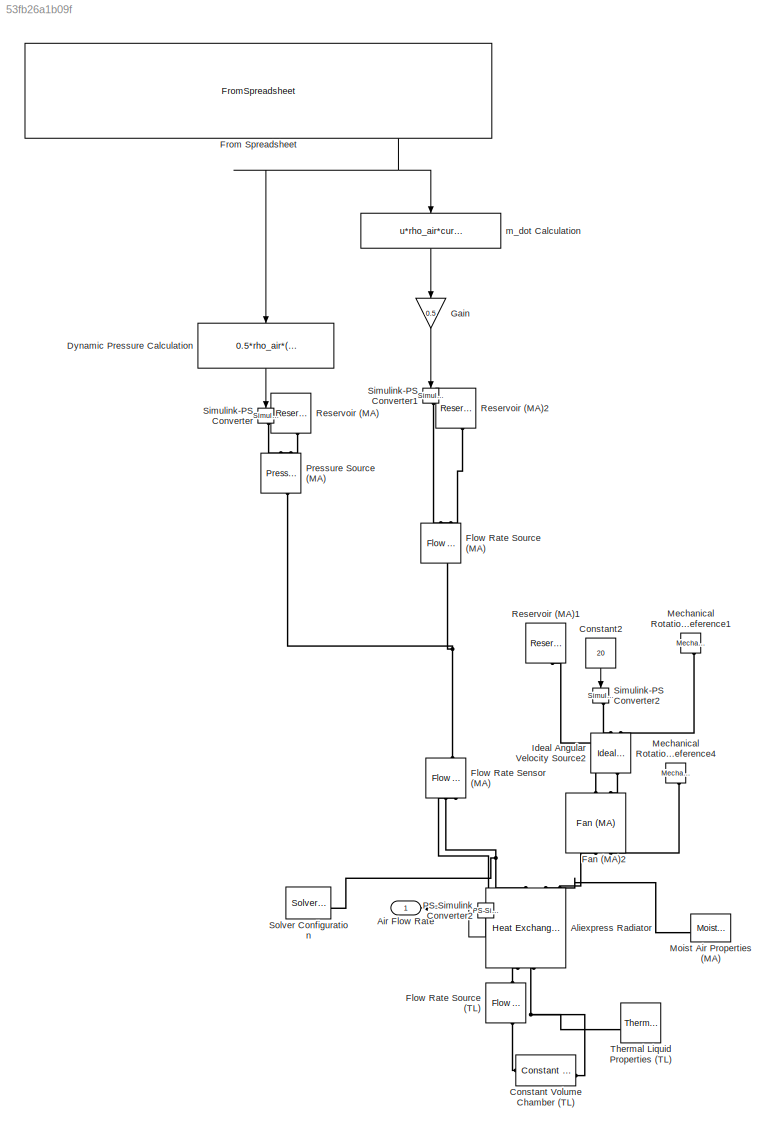
MODEL slx_53fb26a1b09f
KIND model
CONFIG AbsTol = auto
CONFIG EnableMultiTasking = off
CONFIG FixedStep = auto
CONFIG MaxStep = auto
CONFIG MinStep = auto
CONFIG RelTol = 1e-3
CONFIG SampleTimeConstraint = Unconstrained
CONFIG SolverName = VariableStepAuto
CONFIG StartTime = 0.0
CONFIG StopTime = 70
BLOCK [Outport] Air Flow Rate
BLOCK [Reference] Aliexpress Radiator  REF=SimscapeFluids_lib/Heat Exchangers/Thermal Liquid -
Moist Air/Heat Exchanger
(TL-MA)
  NameLocation = right
  SourceBlock = SimscapeFluids_lib/Heat Exchangers/Thermal Liquid -\nMoist Air/Heat Exchanger\n(TL-MA)
  SourceType = Heat Exchanger\n(TL-MA)
BLOCK [Reference] Constant Volume Chamber (TL)  REF=fl_lib/Thermal Liquid/Elements/Constant Volume
Chamber (TL)
  SourceBlock = fl_lib/Thermal Liquid/Elements/Constant Volume\nChamber (TL)
  SourceType = Constant Volume\nChamber (TL)
BLOCK [Constant] Constant2
  NameLocation = left
  Value = 20
BLOCK [Fcn] Dynamic Pressure Calculation
  Expr = 0.5*rho_air*(u^2)
  NameLocation = left
BLOCK [Reference] Fan (MA)2  REF=SimscapeFluids_lib/Moist Air/Turbomachinery/Fan (MA)
  NameLocation = right
  SourceBlock = SimscapeFluids_lib/Moist Air/Turbomachinery/Fan (MA)
  SourceType = Fan (MA)
BLOCK [Reference] Flow Rate Sensor (MA)  REF=fl_lib/Moist Air/Sensors/Flow Rate Sensor
(MA)
  NameLocation = left
  SourceBlock = fl_lib/Moist Air/Sensors/Flow Rate Sensor\n(MA)
  SourceType = Flow Rate Sensor\n(MA)
BLOCK [Reference] Flow Rate Source (MA)  REF=fl_lib/Moist Air/Sources/Flow Rate Source
(MA)
  Commented = on
  NameLocation = left
  SourceBlock = fl_lib/Moist Air/Sources/Flow Rate Source\n(MA)
  SourceType = Flow Rate Source\n(MA)
BLOCK [Reference] Flow Rate Source (TL)  REF=fl_lib/Thermal Liquid/Sources/Flow Rate Source
(TL)
  NameLocation = right
  SourceBlock = fl_lib/Thermal Liquid/Sources/Flow Rate Source\n(TL)
  SourceType = Flow Rate Source\n(TL)
BLOCK [FromSpreadsheet] From Spreadsheet
  FileName = <userpath>\School\UCalgary Racing\2024-25\Projects\UCR02-CoolingSim\data\shortened_velocity.csv
  NameLocation = left
  SheetName = shortened_velocity
BLOCK [Gain] Gain
  Commented = on
  Gain = 0.5
  NameLocation = left
BLOCK [Reference] Ideal Angular Velocity Source2  REF=fl_lib/Mechanical/Mechanical Sources/Ideal Angular
Velocity Source
  NameLocation = left
  SourceBlock = fl_lib/Mechanical/Mechanical Sources/Ideal Angular\nVelocity Source
  SourceType = Ideal Angular\nVelocity Source
BLOCK [Reference] Mechanical Rotational Reference1  REF=fl_lib/Mechanical/Rotational Elements/Mechanical
Rotational Reference
  NameLocation = left
  SourceBlock = fl_lib/Mechanical/Rotational Elements/Mechanical\nRotational Reference
  SourceType = Mechanical\nRotational Reference
BLOCK [Reference] Mechanical Rotational Reference4  REF=fl_lib/Mechanical/Rotational Elements/Mechanical
Rotational Reference
  NameLocation = left
  SourceBlock = fl_lib/Mechanical/Rotational Elements/Mechanical\nRotational Reference
  SourceType = Mechanical\nRotational Reference
BLOCK [Reference] Moist Air Properties (MA)  REF=fl_lib/Moist Air/Utilities/Moist Air Properties
(MA)
  SourceBlock = fl_lib/Moist Air/Utilities/Moist Air Properties\n(MA)
  SourceType = Moist Air Properties\n(MA)
BLOCK [Reference] PS-Simulink Converter2  REF=nesl_utility/PS-Simulink
Converter
  NameLocation = left
  SourceBlock = nesl_utility/PS-Simulink\nConverter
  SourceType = PS-Simulink\nConverter
BLOCK [Reference] Pressure Source (MA)  REF=fl_lib/Moist Air/Sources/Pressure Source (MA)
  NameLocation = left
  SourceBlock = fl_lib/Moist Air/Sources/Pressure Source (MA)
  SourceType = Pressure Source (MA)
BLOCK [Reference] Reservoir (MA)  REF=fl_lib/Moist Air/Elements/Reservoir (MA)
  NameLocation = left
  SourceBlock = fl_lib/Moist Air/Elements/Reservoir (MA)
  SourceType = Reservoir (MA)
BLOCK [Reference] Reservoir (MA)1  REF=fl_lib/Moist Air/Elements/Reservoir (MA)
  NameLocation = left
  SourceBlock = fl_lib/Moist Air/Elements/Reservoir (MA)
  SourceType = Reservoir (MA)
BLOCK [Reference] Reservoir (MA)2  REF=fl_lib/Moist Air/Elements/Reservoir (MA)
  Commented = on
  NameLocation = left
  SourceBlock = fl_lib/Moist Air/Elements/Reservoir (MA)
  SourceType = Reservoir (MA)
BLOCK [Reference] Simulink-PS Converter  REF=nesl_utility/Simulink-PS
Converter
  NameLocation = left
  SourceBlock = nesl_utility/Simulink-PS\nConverter
  SourceType = Simulink-PS\nConverter
BLOCK [Reference] Simulink-PS Converter1  REF=nesl_utility/Simulink-PS
Converter
  Commented = on
  NameLocation = left
  SourceBlock = nesl_utility/Simulink-PS\nConverter
  SourceType = Simulink-PS\nConverter
BLOCK [Reference] Simulink-PS Converter2  REF=nesl_utility/Simulink-PS
Converter
  NameLocation = left
  SourceBlock = nesl_utility/Simulink-PS\nConverter
  SourceType = Simulink-PS\nConverter
BLOCK [Reference] Solver Configuration  REF=nesl_utility/Solver
Configuration
  SourceBlock = nesl_utility/Solver\nConfiguration
  SourceType = Solver\nConfiguration
BLOCK [Reference] Thermal Liquid Properties (TL)  REF=SimscapeFluids_lib/Thermal Liquid/Utilities/Thermal Liquid
Properties (TL)
  SourceBlock = SimscapeFluids_lib/Thermal Liquid/Utilities/Thermal Liquid\nProperties (TL)
  SourceType = Thermal Liquid\nProperties (TL)
BLOCK [Fcn] m_dot Calculation
  Commented = on
  Expr = u*rho_air*current_rad_area
  NameLocation = left
LINE Constant2:1 -> Simulink-PS Converter2:1
LINE Dynamic Pressure Calculation:1 -> Simulink-PS Converter:1
NET From Spreadsheet:4 -> Dynamic Pressure Calculation:1, m_dot Calculation:1
LINE Gain:1 -> Simulink-PS Converter1:1
LINE PS-Simulink Converter2:1 -> Air Flow Rate:1
LINE m_dot Calculation:1 -> Gain:1
PLINE Aliexpress Radiator:LConn1 -- Flow Rate Source (TL):RConn1
PNET net1: Aliexpress Radiator:LConn2 -- Constant Volume Chamber (TL):RConn1 -- Thermal Liquid Properties (TL):RConn1
PNET net2: Aliexpress Radiator:RConn1 -- Flow Rate Sensor (MA):RConn1 -- Solver Configuration:RConn1
PNET net3: Aliexpress Radiator:RConn2 -- Fan (MA)2:LConn1 -- Moist Air Properties (MA):RConn1
PLINE Constant Volume Chamber (TL):LConn1 -- Flow Rate Source (TL):LConn1
PLINE Fan (MA)2:LConn2 -- Mechanical Rotational Reference4:LConn1
PLINE Fan (MA)2:RConn1 -- Reservoir (MA)1:LConn1
PLINE Fan (MA)2:RConn2 -- Ideal Angular Velocity Source2:LConn1
PNET net4: Flow Rate Sensor (MA):LConn1 -- Flow Rate Source (MA):RConn1 -- Pressure Source (MA):RConn1
PLINE Flow Rate Sensor (MA):RConn2 -- PS-Simulink Converter2:LConn1
PLINE Flow Rate Source (MA):LConn1 -- Reservoir (MA)2:LConn1
PLINE Flow Rate Source (MA):LConn2 -- Simulink-PS Converter1:RConn1
PLINE Ideal Angular Velocity Source2:RConn1 -- Simulink-PS Converter2:RConn1
PLINE Ideal Angular Velocity Source2:RConn2 -- Mechanical Rotational Reference1:LConn1
PLINE Pressure Source (MA):LConn1 -- Reservoir (MA):LConn1
PLINE Pressure Source (MA):LConn2 -- Simulink-PS Converter:RConn1
note: NET lines group one-source signal fan-out (src -> all destinations, sorted); 1:1 wires keep LINE; PNET lines group multi-terminal physical nets as a canonical sorted terminal list (undirected conserving connections); 2-terminal nets keep the pairwise PLINE form
